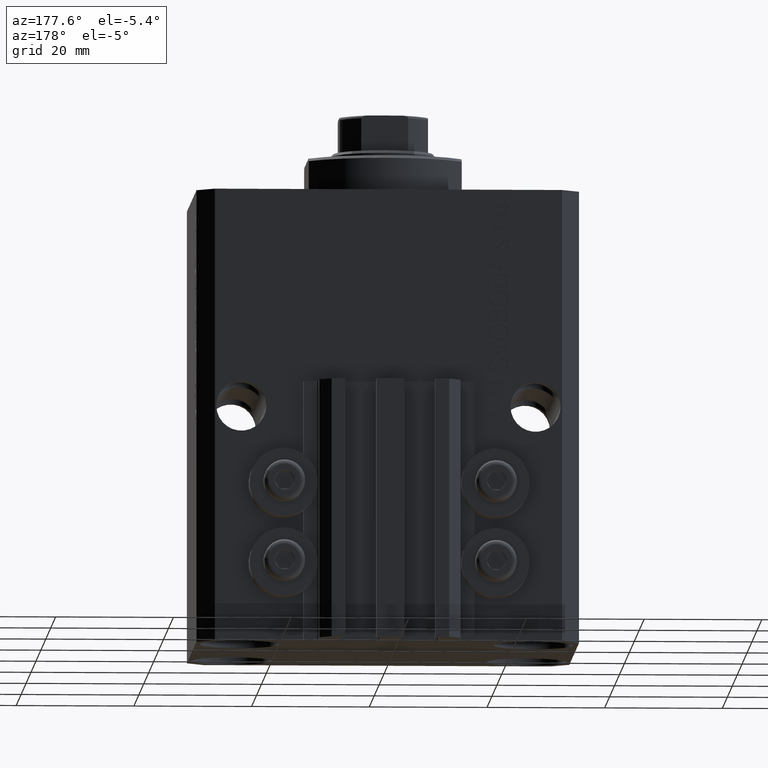
[diagram: clean part render]
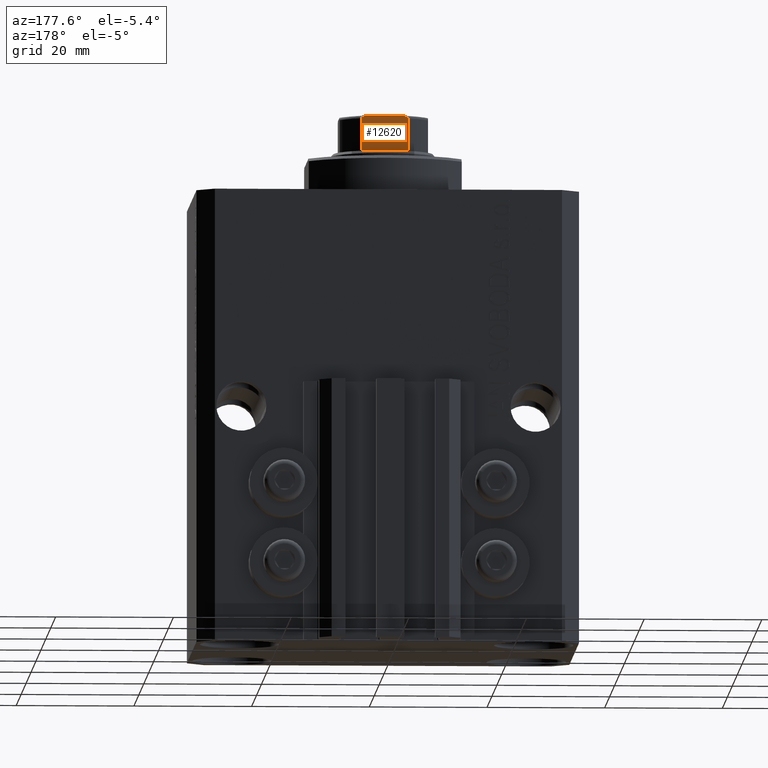
[diagram: same view with one face highlighted and labeled with its STEP entity id]
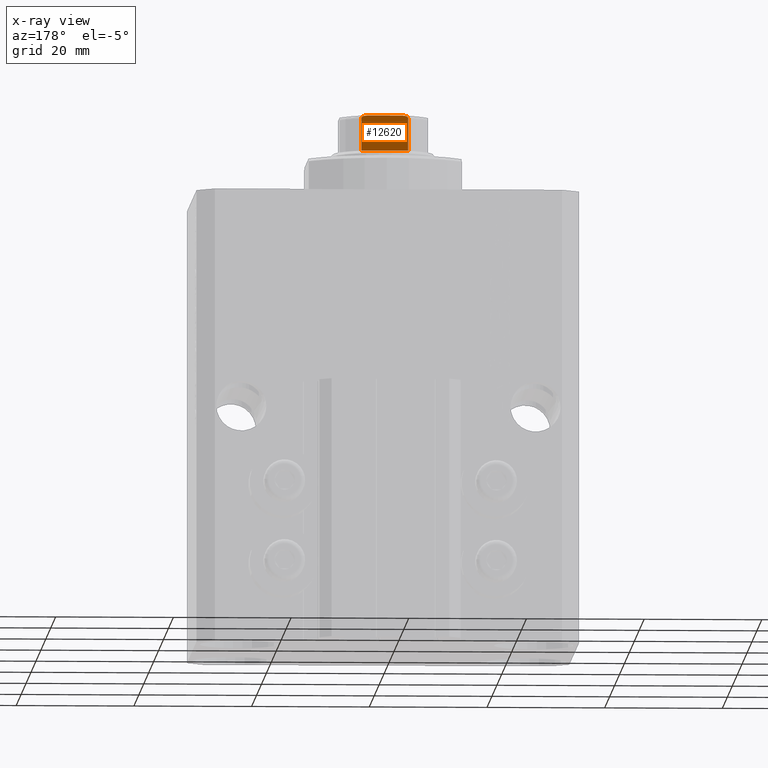
[diagram: x-ray of the same camera — body ghosted, the highlighted face saturated]
A machine part, auxiliary view. The second image highlights one B-rep face of the part: STEP entity #12620.
The next image is the same camera in x-ray: the body ghosted, the highlighted face saturated — about 0% of this face is hidden behind the body in this view.
In plain terms, the highlighted planar face has unit normal (0, -1, 0).
Its self-contained STEP definition (entity closure, byte-faithful):
#921 = PLANE ( 'NONE',  #39542 ) ;
#2362 = CARTESIAN_POINT ( 'NONE',  ( -3.020011215871897914, 7.500000000000000000, 84.10000000000000853 ) ) ;
#2652 = B_SPLINE_CURVE_WITH_KNOTS ( 'NONE', 3,
 ( #25717, #33104, #22138, #3532, #43352, #46919, #10666, #36672, #3999, #32394 ),
 .UNSPECIFIED., .F., .F.,
 ( 4, 2, 2, 2, 4 ),
 ( 4.336808689942017736E-19, 0.0007049202178654017650, 0.001057380326798107797, 0.001233610381264460759, 0.001409840435730813721 ),
 .UNSPECIFIED. ) ;
#3532 = CARTESIAN_POINT ( 'NONE',  ( 3.598393151503780363, 7.499999999999999112, 83.99012191927408821 ) ) ;
#3979 = CARTESIAN_POINT ( 'NONE',  ( -7.499999999999998224, 7.499999999999999112, 78.10000000000000853 ) ) ;
#3999 = CARTESIAN_POINT ( 'NONE',  ( 4.000000000000211386, 7.500000000000000000, 83.66034186205209267 ) ) ;
#4035 = EDGE_CURVE ( 'NONE', #20367, #18866, #11417, .T. ) ;
#4046 = FACE_OUTER_BOUND ( 'NONE', #45349, .T. ) ;
#4884 = B_SPLINE_CURVE_WITH_KNOTS ( 'NONE', 3,
 ( #17876, #9742, #14279, #46246, #9986, #28612, #6643, #46946, #2362, #38636 ),
 .UNSPECIFIED., .F., .F.,
 ( 4, 2, 2, 2, 4 ),
 ( 0.000000000000000000, 0.0001779688448868754422, 0.0003559376897737516975, 0.0007118753795475258380, 0.001423750759095075312 ),
 .UNSPECIFIED. ) ;
#6643 = CARTESIAN_POINT ( 'NONE',  ( -3.597188386589929454, 7.500000000000000888, 83.99052843393241119 ) ) ;
#6727 = EDGE_CURVE ( 'NONE', #13822, #42788, #2652, .T. ) ;
#7513 = EDGE_CURVE ( 'NONE', #39743, #42788, #45872, .T. ) ;
#7530 = VECTOR ( 'NONE', #26673, 1000.000000000000000 ) ;
#8061 = DIRECTION ( 'NONE',  ( -0.000000000000000000, -0.000000000000000000, 1.000000000000000000 ) ) ;
#8305 = DIRECTION ( 'NONE',  ( 5.782411586589357392E-17, -1.000000000000000000, 0.000000000000000000 ) ) ;
#9742 = CARTESIAN_POINT ( 'NONE',  ( -4.000000000000000888, 7.500000000000001776, 83.66026396800438647 ) ) ;
#9986 = CARTESIAN_POINT ( 'NONE',  ( -3.858352854028597623, 7.499999999999999112, 83.85117951603156428 ) ) ;
#10666 = CARTESIAN_POINT ( 'NONE',  ( 3.904072061442345198, 7.500000000000001776, 83.81287056890808174 ) ) ;
#11417 = LINE ( 'NONE', #37639, #44905 ) ;
#12620 = ADVANCED_FACE ( 'NONE', ( #4046 ), #921, .F. ) ;
#12791 = LINE ( 'NONE', #26904, #7530 ) ;
#13628 = EDGE_CURVE ( 'NONE', #18866, #42288, #4884, .T. ) ;
#13822 = VERTEX_POINT ( 'NONE', #22868 ) ;
#14279 = CARTESIAN_POINT ( 'NONE',  ( -3.976018255615928254, 7.499999999999998224, 83.71726199300995575 ) ) ;
#15749 = EDGE_CURVE ( 'NONE', #13822, #42288, #12791, .T. ) ;
#16178 = ORIENTED_EDGE ( 'NONE', *, *, #6727, .T. ) ;
#16557 = CARTESIAN_POINT ( 'NONE',  ( 4.000000000000001776, 7.500000000000000000, 83.60000000000000853 ) ) ;
#17876 = CARTESIAN_POINT ( 'NONE',  ( -4.000000000000000888, 7.500000000000000000, 83.60000000000000853 ) ) ;
#18866 = VERTEX_POINT ( 'NONE', #35267 ) ;
#20134 = DIRECTION ( 'NONE',  ( -0.000000000000000000, -0.000000000000000000, 1.000000000000000000 ) ) ;
#20367 = VERTEX_POINT ( 'NONE', #25620 ) ;
#22113 = LINE ( 'NONE', #3979, #23257 ) ;
#22138 = CARTESIAN_POINT ( 'NONE',  ( 3.255843148148206190, 7.500000000000001776, 84.08262378726875852 ) ) ;
#22868 = CARTESIAN_POINT ( 'NONE',  ( 2.783882181415012980, 7.500000000000000000, 84.10000000000000853 ) ) ;
#23257 = VECTOR ( 'NONE', #25698, 1000.000000000000000 ) ;
#25015 = ORIENTED_EDGE ( 'NONE', *, *, #4035, .T. ) ;
#25482 = ORIENTED_EDGE ( 'NONE', *, *, #13628, .T. ) ;
#25620 = CARTESIAN_POINT ( 'NONE',  ( -4.000000000000003553, 7.500000000000000000, 78.10000000000005116 ) ) ;
#25698 = DIRECTION ( 'NONE',  ( -1.000000000000000000, -5.782411586589357392E-17, -0.000000000000000000 ) ) ;
#25717 = CARTESIAN_POINT ( 'NONE',  ( 2.783882181415012980, 7.500000000000000000, 84.10000000000000853 ) ) ;
#26461 = DIRECTION ( 'NONE',  ( 1.000000000000000000, 5.782411586589357392E-17, 0.000000000000000000 ) ) ;
#26673 = DIRECTION ( 'NONE',  ( -1.000000000000000000, -5.782411586589357392E-17, -0.000000000000000000 ) ) ;
#26904 = CARTESIAN_POINT ( 'NONE',  ( -7.499999999999998224, 7.499999999999999112, 84.10000000000000853 ) ) ;
#28189 = ORIENTED_EDGE ( 'NONE', *, *, #7513, .F. ) ;
#28612 = CARTESIAN_POINT ( 'NONE',  ( -3.708875323752956810, 7.499999999999997335, 83.94930352055462208 ) ) ;
#29342 = CARTESIAN_POINT ( 'NONE',  ( -7.499999999999998224, 7.499999999999999112, 84.10000000000000853 ) ) ;
#32126 = VECTOR ( 'NONE', #20134, 1000.000000000000000 ) ;
#32394 = CARTESIAN_POINT ( 'NONE',  ( 4.000000000000001776, 7.500000000000000000, 83.60000000000000853 ) ) ;
#33104 = CARTESIAN_POINT ( 'NONE',  ( 3.020030562295405119, 7.500000000000000000, 84.10000000000000853 ) ) ;
#35267 = CARTESIAN_POINT ( 'NONE',  ( -4.000000000000000888, 7.500000000000000000, 83.60000000000000853 ) ) ;
#35540 = EDGE_CURVE ( 'NONE', #39743, #20367, #22113, .T. ) ;
#36672 = CARTESIAN_POINT ( 'NONE',  ( 3.975735230428943279, 7.500000000000000000, 83.71773041319778486 ) ) ;
#37639 = CARTESIAN_POINT ( 'NONE',  ( -4.000000000000000888, 7.500000000000000000, -0.001000000000001000089 ) ) ;
#37784 = CARTESIAN_POINT ( 'NONE',  ( 4.000000000000001776, 7.500000000000000000, -0.001000000000001000089 ) ) ;
#38636 = CARTESIAN_POINT ( 'NONE',  ( -2.783882181415013868, 7.499999999999999112, 84.10000000000000853 ) ) ;
#39542 = AXIS2_PLACEMENT_3D ( 'NONE', #29342, #8305, #26461 ) ;
#39743 = VERTEX_POINT ( 'NONE', #40078 ) ;
#39799 = CARTESIAN_POINT ( 'NONE',  ( -2.783882181415013868, 7.499999999999999112, 84.10000000000000853 ) ) ;
#40078 = CARTESIAN_POINT ( 'NONE',  ( 4.000000000000001776, 7.500000000000000000, 78.10000000000005116 ) ) ;
#40901 = ORIENTED_EDGE ( 'NONE', *, *, #15749, .F. ) ;
#42288 = VERTEX_POINT ( 'NONE', #39799 ) ;
#42552 = ORIENTED_EDGE ( 'NONE', *, *, #35540, .T. ) ;
#42788 = VERTEX_POINT ( 'NONE', #16557 ) ;
#43352 = CARTESIAN_POINT ( 'NONE',  ( 3.710689790367155627, 7.500000000000000000, 83.94812118173425119 ) ) ;
#44905 = VECTOR ( 'NONE', #8061, 1000.000000000000000 ) ;
#45349 = EDGE_LOOP ( 'NONE', ( #40901, #16178, #28189, #42552, #25015, #25482 ) ) ;
#45872 = LINE ( 'NONE', #37784, #32126 ) ;
#46246 = CARTESIAN_POINT ( 'NONE',  ( -3.904208668232357127, 7.500000000000000888, 83.81278134537498659 ) ) ;
#46919 = CARTESIAN_POINT ( 'NONE',  ( 3.857502111569846459, 7.500000000000004441, 83.85173359969216733 ) ) ;
#46946 = CARTESIAN_POINT ( 'NONE',  ( -3.254991323038179729, 7.499999999999999112, 84.08269028443156401 ) ) ;